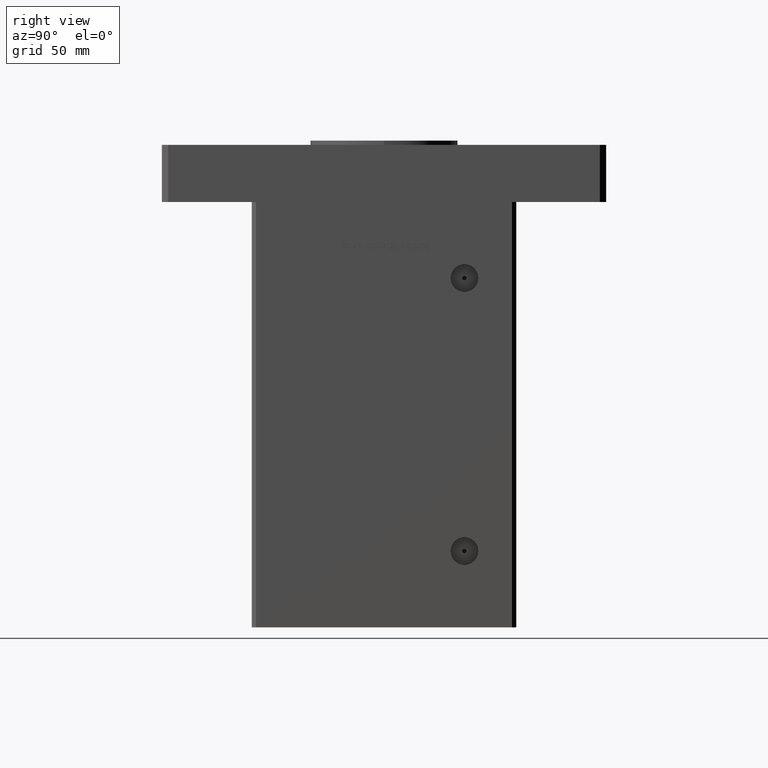
[diagram: clean part render]
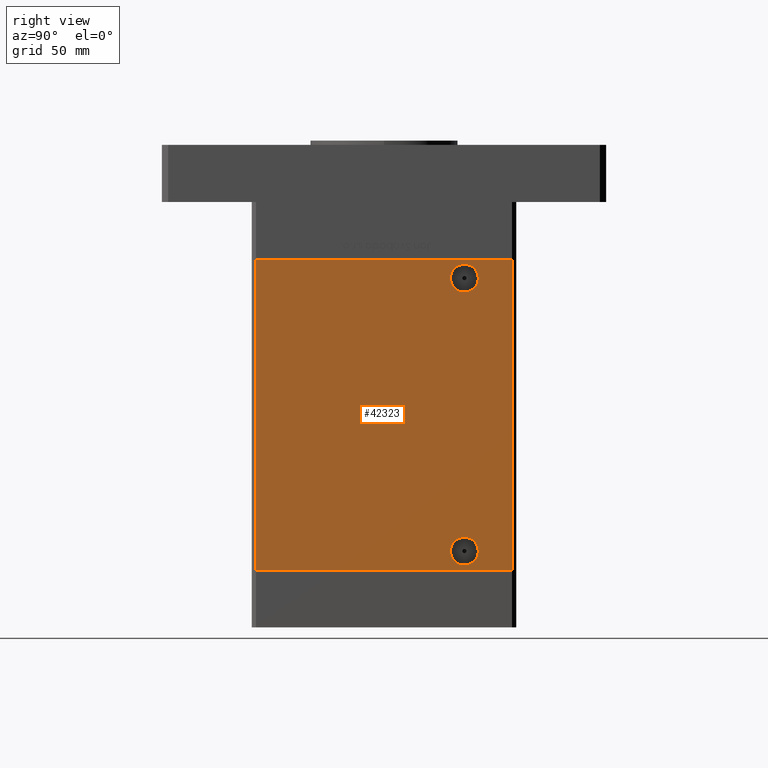
[diagram: same view with one face highlighted and labeled with its STEP entity id]
A machine part, right view. The second image highlights one B-rep face of the part: STEP entity #42323.
In plain terms, the highlighted planar face has unit normal (1, -0, 0).
Its self-contained STEP definition (entity closure, byte-faithful):
#1011 = EDGE_CURVE ( 'NONE', #26955, #53251, #34146, .T. ) ;
#1486 = CARTESIAN_POINT ( 'NONE',  ( 75.00000000000001421, 44.57999999999999119, 9.000000000000000000 ) ) ;
#1500 = DIRECTION ( 'NONE',  ( 1.000000000000000000, -2.275047181608927644E-16, 0.000000000000000000 ) ) ;
#1679 = EDGE_CURVE ( 'NONE', #7831, #41387, #33996, .T. ) ;
#2375 = EDGE_CURVE ( 'NONE', #26955, #14880, #42524, .T. ) ;
#2743 = VECTOR ( 'NONE', #3758, 1000.000000000000000 ) ;
#3758 = DIRECTION ( 'NONE',  ( -0.000000000000000000, -0.000000000000000000, -1.000000000000000000 ) ) ;
#5293 = DIRECTION ( 'NONE',  ( 0.000000000000000000, 1.000000000000000000, 0.000000000000000000 ) ) ;
#5423 = CARTESIAN_POINT ( 'NONE',  ( 75.00000000000001421, 60.50000000000000000, 147.0000000000000000 ) ) ;
#5809 = CARTESIAN_POINT ( 'NONE',  ( 74.99999999999998579, -60.50000000000000000, 0.000000000000000000 ) ) ;
#5887 = CARTESIAN_POINT ( 'NONE',  ( 75.00000000000001421, 60.50000000000000000, 147.0000000000000000 ) ) ;
#6220 = DIRECTION ( 'NONE',  ( -0.000000000000000000, -0.000000000000000000, -1.000000000000000000 ) ) ;
#7831 = VERTEX_POINT ( 'NONE', #19758 ) ;
#9636 = CARTESIAN_POINT ( 'NONE',  ( 75.00000000000001421, 38.00000000000000000, 9.000000000000000000 ) ) ;
#10107 = EDGE_LOOP ( 'NONE', ( #17802, #20330 ) ) ;
#10316 = CARTESIAN_POINT ( 'NONE',  ( 75.00000000000001421, 38.00000000000000000, 9.000000000000000000 ) ) ;
#11218 = EDGE_CURVE ( 'NONE', #26466, #53325, #43891, .T. ) ;
#11676 = CARTESIAN_POINT ( 'NONE',  ( 75.00000000000001421, 31.42000000000000171, 9.000000000000000000 ) ) ;
#14476 = DIRECTION ( 'NONE',  ( 1.000000000000000000, -2.275047181608927644E-16, 0.000000000000000000 ) ) ;
#14525 = CARTESIAN_POINT ( 'NONE',  ( 75.00000000000001421, 38.00000000000000000, 137.9999999999999716 ) ) ;
#14880 = VERTEX_POINT ( 'NONE', #38114 ) ;
#16030 = EDGE_CURVE ( 'NONE', #14880, #22332, #18933, .T. ) ;
#17802 = ORIENTED_EDGE ( 'NONE', *, *, #40966, .F. ) ;
#18470 = AXIS2_PLACEMENT_3D ( 'NONE', #14525, #38925, #31061 ) ;
#18933 = LINE ( 'NONE', #20215, #27135 ) ;
#19085 = AXIS2_PLACEMENT_3D ( 'NONE', #10316, #35239, #47696 ) ;
#19188 = EDGE_CURVE ( 'NONE', #53325, #26466, #51987, .T. ) ;
#19758 = CARTESIAN_POINT ( 'NONE',  ( 75.00000000000001421, 31.41999999999998394, 137.9999999999999716 ) ) ;
#20215 = CARTESIAN_POINT ( 'NONE',  ( 75.00000000000001421, 60.50000000000000000, 0.000000000000000000 ) ) ;
#20260 = VECTOR ( 'NONE', #6220, 1000.000000000000000 ) ;
#20330 = ORIENTED_EDGE ( 'NONE', *, *, #1679, .F. ) ;
#20931 = FACE_BOUND ( 'NONE', #50508, .T. ) ;
#22286 = ORIENTED_EDGE ( 'NONE', *, *, #27489, .T. ) ;
#22332 = VERTEX_POINT ( 'NONE', #5809 ) ;
#23001 = DIRECTION ( 'NONE',  ( -2.293849224432141861E-16, -1.000000000000000000, 0.000000000000000000 ) ) ;
#25259 = CARTESIAN_POINT ( 'NONE',  ( 75.00000000000001421, 44.58000000000001251, 137.9999999999999716 ) ) ;
#25333 = CARTESIAN_POINT ( 'NONE',  ( 74.99999999999998579, -60.50000000000000000, 147.0000000000000000 ) ) ;
#25543 = FACE_OUTER_BOUND ( 'NONE', #46924, .T. ) ;
#25623 = AXIS2_PLACEMENT_3D ( 'NONE', #37473, #50739, #33669 ) ;
#26466 = VERTEX_POINT ( 'NONE', #11676 ) ;
#26955 = VERTEX_POINT ( 'NONE', #5887 ) ;
#27135 = VECTOR ( 'NONE', #27591, 1000.000000000000000 ) ;
#27330 = ORIENTED_EDGE ( 'NONE', *, *, #2375, .F. ) ;
#27489 = EDGE_CURVE ( 'NONE', #53251, #22332, #45712, .T. ) ;
#27591 = DIRECTION ( 'NONE',  ( -2.293849224432141861E-16, -1.000000000000000000, 0.000000000000000000 ) ) ;
#27980 = CIRCLE ( 'NONE', #18470, 6.580000000000016058 ) ;
#28453 = ORIENTED_EDGE ( 'NONE', *, *, #11218, .F. ) ;
#28930 = CARTESIAN_POINT ( 'NONE',  ( 74.99999999999998579, -60.50000000000000000, 147.0000000000000000 ) ) ;
#30493 = DIRECTION ( 'NONE',  ( 0.000000000000000000, 1.000000000000000000, 0.000000000000000000 ) ) ;
#31061 = DIRECTION ( 'NONE',  ( 0.000000000000000000, 1.000000000000000000, 0.000000000000000000 ) ) ;
#33408 = PLANE ( 'NONE',  #25623 ) ;
#33669 = DIRECTION ( 'NONE',  ( 2.293849224432141861E-16, 1.000000000000000000, 0.000000000000000000 ) ) ;
#33996 = CIRCLE ( 'NONE', #47834, 6.580000000000016058 ) ;
#34146 = LINE ( 'NONE', #34678, #40606 ) ;
#34216 = ORIENTED_EDGE ( 'NONE', *, *, #1011, .T. ) ;
#34549 = CARTESIAN_POINT ( 'NONE',  ( 75.00000000000001421, 38.00000000000000000, 137.9999999999999716 ) ) ;
#34678 = CARTESIAN_POINT ( 'NONE',  ( 75.00000000000001421, 60.50000000000000000, 147.0000000000000000 ) ) ;
#35239 = DIRECTION ( 'NONE',  ( 1.000000000000000000, -2.275047181608927644E-16, 0.000000000000000000 ) ) ;
#37473 = CARTESIAN_POINT ( 'NONE',  ( 75.00000000000001421, 60.50000000000000000, 147.0000000000000000 ) ) ;
#38114 = CARTESIAN_POINT ( 'NONE',  ( 75.00000000000001421, 60.50000000000000000, 0.000000000000000000 ) ) ;
#38925 = DIRECTION ( 'NONE',  ( 1.000000000000000000, -2.275047181608927644E-16, 0.000000000000000000 ) ) ;
#40606 = VECTOR ( 'NONE', #23001, 1000.000000000000000 ) ;
#40966 = EDGE_CURVE ( 'NONE', #41387, #7831, #27980, .T. ) ;
#41387 = VERTEX_POINT ( 'NONE', #25259 ) ;
#42067 = FACE_BOUND ( 'NONE', #10107, .T. ) ;
#42323 = ADVANCED_FACE ( 'NONE', ( #42067, #20931, #25543 ), #33408, .T. ) ;
#42495 = ORIENTED_EDGE ( 'NONE', *, *, #16030, .F. ) ;
#42524 = LINE ( 'NONE', #5423, #20260 ) ;
#43891 = CIRCLE ( 'NONE', #50817, 6.579999999999995630 ) ;
#45712 = LINE ( 'NONE', #28930, #2743 ) ;
#46924 = EDGE_LOOP ( 'NONE', ( #42495, #27330, #34216, #22286 ) ) ;
#47696 = DIRECTION ( 'NONE',  ( 0.000000000000000000, 1.000000000000000000, 0.000000000000000000 ) ) ;
#47834 = AXIS2_PLACEMENT_3D ( 'NONE', #34549, #14476, #5293 ) ;
#49658 = ORIENTED_EDGE ( 'NONE', *, *, #19188, .F. ) ;
#50508 = EDGE_LOOP ( 'NONE', ( #49658, #28453 ) ) ;
#50739 = DIRECTION ( 'NONE',  ( 1.000000000000000000, -2.293849224432141861E-16, 0.000000000000000000 ) ) ;
#50817 = AXIS2_PLACEMENT_3D ( 'NONE', #9636, #1500, #30493 ) ;
#51987 = CIRCLE ( 'NONE', #19085, 6.579999999999995630 ) ;
#53251 = VERTEX_POINT ( 'NONE', #25333 ) ;
#53325 = VERTEX_POINT ( 'NONE', #1486 ) ;